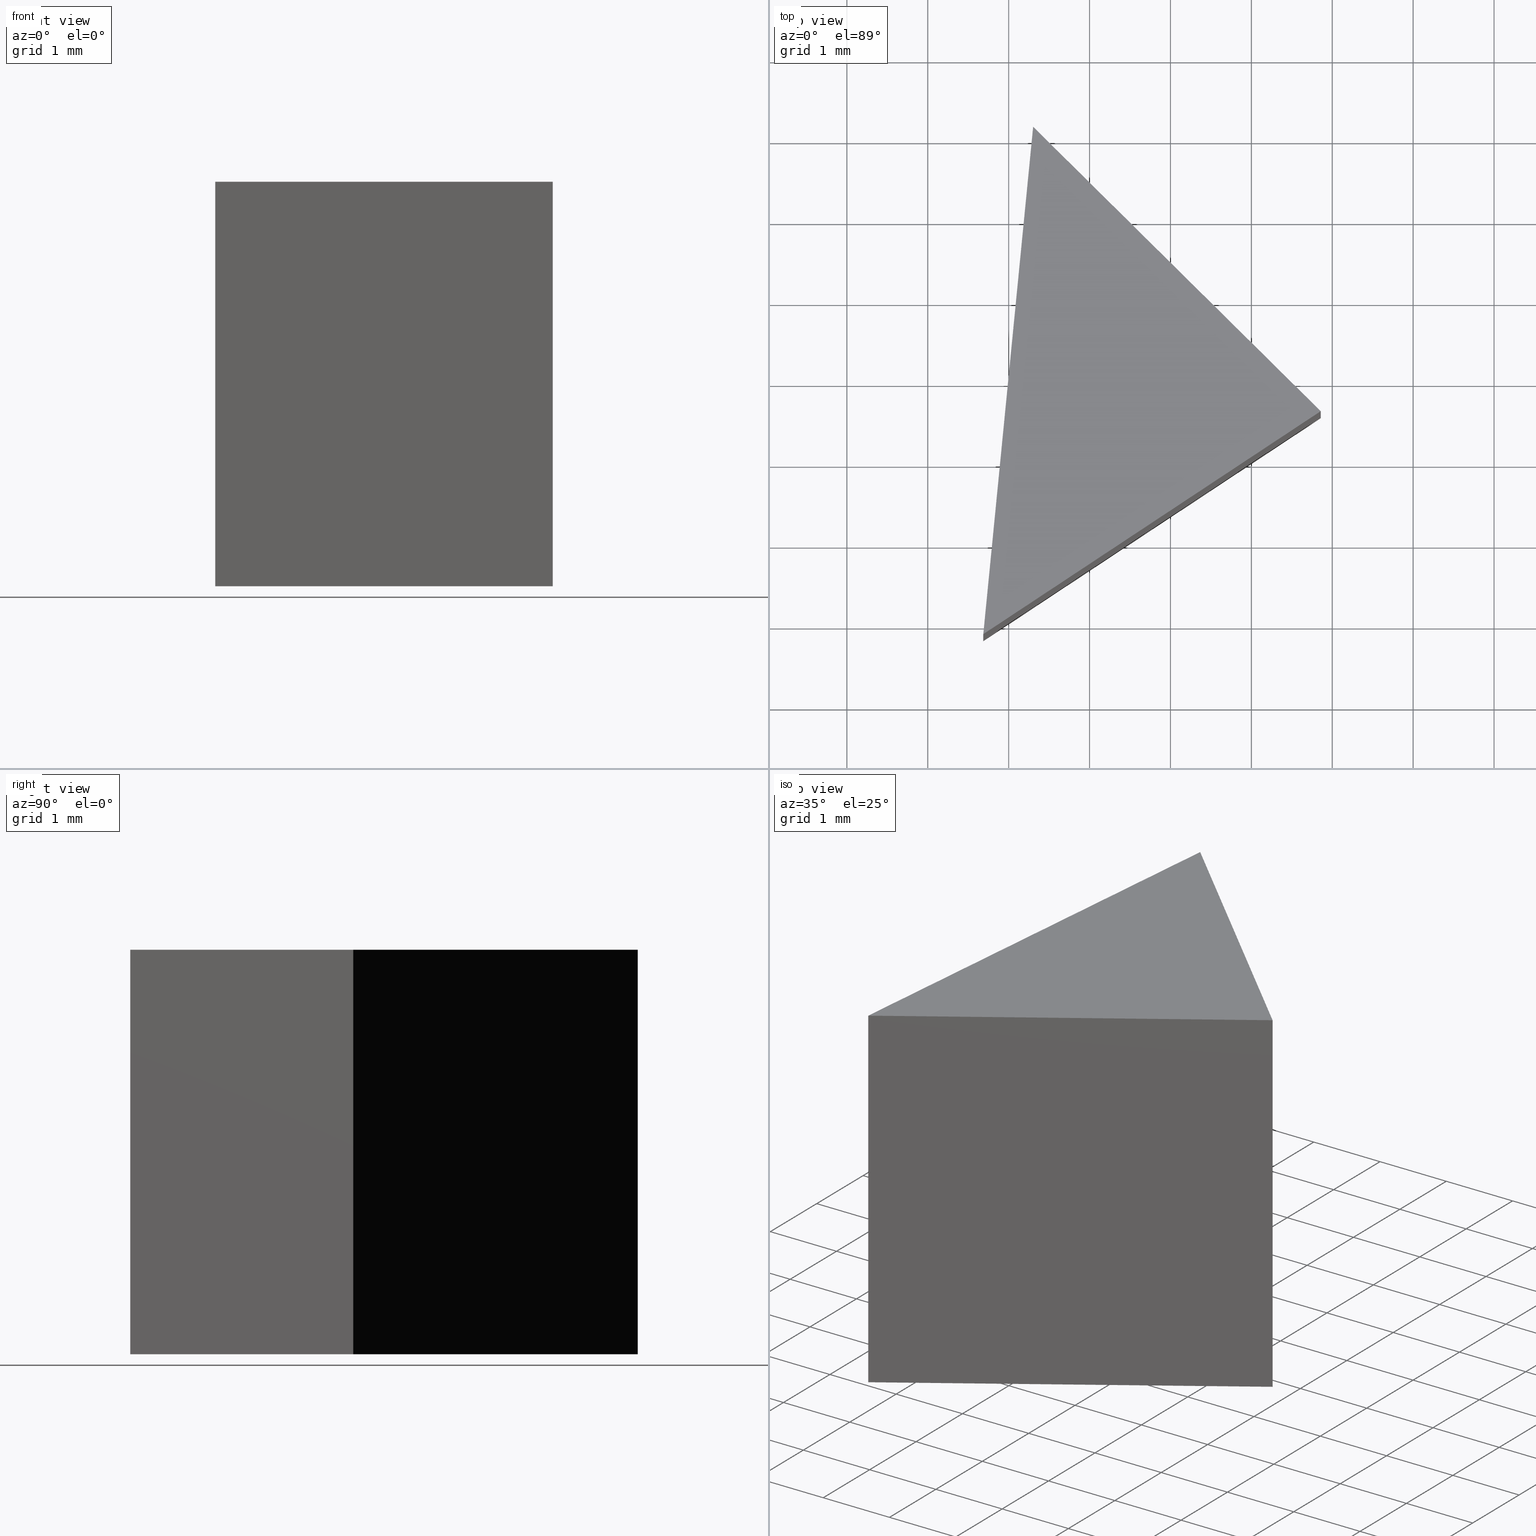
[diagram: canonical four-view strip — front | top / right | iso, engineering-drawing reading convention]
A machine part, canonical four-view strip (front | top / right | iso — engineering-drawing reading convention). The complete STEP part file that produces these views, byte-faithful:
ISO-10303-21;
HEADER;
FILE_DESCRIPTION (( 'STEP AP214' ),
    '1' );
FILE_NAME ('469000.STEP',
    '2019-08-23T02:00:11',
    ( 'user' ),
    ( '΢���й�' ),
    'SwSTEP 2.0',
    'SolidWorks 2016',
    '' );
FILE_SCHEMA (( 'AUTOMOTIVE_DESIGN' ));
ENDSEC;

DATA;
#1 = COLOUR_RGB ( '',1.000000000000000000, 1.000000000000000000, 1.000000000000000000 ) ;
#2 = VECTOR ( 'NONE', #42, 1000.000000000000000 ) ;
#3 = SURFACE_SIDE_STYLE ('',( #137 ) ) ;
#4 = CARTESIAN_POINT ( 'NONE',  ( 0.6861709744360347000, 0.8474711050240408800, 5.000000000000000000 ) ) ;
#5 = ORIENTED_EDGE ( 'NONE', *, *, #168, .F. ) ;
#6 = SURFACE_STYLE_USAGE ( .BOTH. , #3 ) ;
#7 =( LENGTH_UNIT ( ) NAMED_UNIT ( * ) SI_UNIT ( .MILLI., .METRE. ) );
#8 = AXIS2_PLACEMENT_3D ( 'NONE', #136, #60, #151 ) ;
#9 = ORIENTED_EDGE ( 'NONE', *, *, #106, .T. ) ;
#10 = SURFACE_STYLE_USAGE ( .BOTH. , #92 ) ;
#11 = EDGE_LOOP ( 'NONE', ( #15, #122, #83 ) ) ;
#12 = PRESENTATION_STYLE_ASSIGNMENT (( #10 ) ) ;
#13 =( GEOMETRIC_REPRESENTATION_CONTEXT ( 3 ) GLOBAL_UNCERTAINTY_ASSIGNED_CONTEXT ( ( #155 ) ) GLOBAL_UNIT_ASSIGNED_CONTEXT ( ( #7, #133, #91 ) ) REPRESENTATION_CONTEXT ( 'NONE', 'WORKASPACE' ) );
#14 = EDGE_LOOP ( 'NONE', ( #9, #5, #49, #21 ) ) ;
#15 = ORIENTED_EDGE ( 'NONE', *, *, #162, .T. ) ;
#16 = DIRECTION ( 'NONE',  ( 1.000000000000000000, 0.0000000000000000000, 0.0000000000000000000 ) ) ;
#17 = DIRECTION ( 'NONE',  ( -0.7109728236074620600, 0.7032194850056648900, 0.0000000000000000000 ) ) ;
#18 = VECTOR ( 'NONE', #82, 1000.000000000000000 ) ;
#19 = ADVANCED_FACE ( 'NONE', ( #45 ), #55, .F. ) ;
#20 = CARTESIAN_POINT ( 'NONE',  ( 0.6861709744360347000, 0.8474711050240408800, 5.000000000000000000 ) ) ;
#21 = ORIENTED_EDGE ( 'NONE', *, *, #95, .T. ) ;
#22 =( NAMED_UNIT ( * ) PLANE_ANGLE_UNIT ( ) SI_UNIT ( $, .RADIAN. ) );
#23 = DIRECTION ( 'NONE',  ( -0.09777970958415417600, -0.9952080829623715100, -0.0000000000000000000 ) ) ;
#24 = UNCERTAINTY_MEASURE_WITH_UNIT (LENGTH_MEASURE( 1.000000000000000100E-005 ), #113, 'distance_accuracy_value', 'NONE');
#25 =( GEOMETRIC_REPRESENTATION_CONTEXT ( 3 ) GLOBAL_UNCERTAINTY_ASSIGNED_CONTEXT ( ( #121 ) ) GLOBAL_UNIT_ASSIGNED_CONTEXT ( ( #103, #22, #117 ) ) REPRESENTATION_CONTEXT ( 'NONE', 'WORKASPACE' ) );
#26 = CARTESIAN_POINT ( 'NONE',  ( 0.6861709744360347000, 0.8474711050240408800, 5.000000000000000000 ) ) ;
#27 = PRODUCT_CONTEXT ( 'NONE', #159, 'mechanical' ) ;
#28 = VECTOR ( 'NONE', #61, 1000.000000000000000 ) ;
#29 = CARTESIAN_POINT ( 'NONE',  ( 1.302506795028856200, 7.120576160069372700, 5.000000000000000000 ) ) ;
#30 =( NAMED_UNIT ( * ) PLANE_ANGLE_UNIT ( ) SI_UNIT ( $, .RADIAN. ) );
#31 = DIRECTION ( 'NONE',  ( 0.09777970958415417600, 0.9952080829623715100, 0.0000000000000000000 ) ) ;
#32 = PRESENTATION_STYLE_ASSIGNMENT (( #6 ) ) ;
#33 = FACE_OUTER_BOUND ( 'NONE', #11, .T. ) ;
#34 = LINE ( 'NONE', #134, #72 ) ;
#35 = CARTESIAN_POINT ( 'NONE',  ( 4.857370913066168000, 3.604478735041047000, 0.0000000000000000000 ) ) ;
#36 =( GEOMETRIC_REPRESENTATION_CONTEXT ( 3 ) GLOBAL_UNCERTAINTY_ASSIGNED_CONTEXT ( ( #24 ) ) GLOBAL_UNIT_ASSIGNED_CONTEXT ( ( #113, #30, #130 ) ) REPRESENTATION_CONTEXT ( 'NONE', 'WORKASPACE' ) );
#37 = DIRECTION ( 'NONE',  ( -0.5514015260034012000, 0.8342399877260262600, 0.0000000000000000000 ) ) ;
#38 = CARTESIAN_POINT ( 'NONE',  ( 4.857370913066168000, 3.604478735041047000, 5.000000000000000000 ) ) ;
#39 = PRODUCT_DEFINITION_FORMATION_WITH_SPECIFIED_SOURCE ( '�κ�', '', #148, .NOT_KNOWN. ) ;
#40 = ORIENTED_EDGE ( 'NONE', *, *, #52, .T. ) ;
#41 = STYLED_ITEM ( 'NONE', ( #32 ), #79 ) ;
#42 = DIRECTION ( 'NONE',  ( -0.0000000000000000000, -0.0000000000000000000, -1.000000000000000000 ) ) ;
#43 = APPLICATION_PROTOCOL_DEFINITION ( 'draft international standard', 'automotive_design', 1998, #125 ) ;
#44 = CARTESIAN_POINT ( 'NONE',  ( 4.857370913066168000, 3.604478735041047000, 5.000000000000000000 ) ) ;
#45 = FACE_OUTER_BOUND ( 'NONE', #14, .T. ) ;
#46 = ORIENTED_EDGE ( 'NONE', *, *, #168, .T. ) ;
#47 = DIRECTION ( 'NONE',  ( -1.000000000000000000, 0.0000000000000000000, 0.0000000000000000000 ) ) ;
#48 = MECHANICAL_DESIGN_GEOMETRIC_PRESENTATION_REPRESENTATION (  '', ( #41 ), #13 ) ;
#49 = ORIENTED_EDGE ( 'NONE', *, *, #146, .F. ) ;
#50 = CLOSED_SHELL ( 'NONE', ( #74, #19, #139, #129, #85 ) ) ;
#51 = ORIENTED_EDGE ( 'NONE', *, *, #52, .F. ) ;
#52 = EDGE_CURVE ( 'NONE', #80, #164, #34, .T. ) ;
#53 = CARTESIAN_POINT ( 'NONE',  ( 0.0000000000000000000, 0.0000000000000000000, 0.0000000000000000000 ) ) ;
#54 = LINE ( 'NONE', #166, #98 ) ;
#55 = PLANE ( 'NONE',  #81 ) ;
#56 = SHAPE_DEFINITION_REPRESENTATION ( #126, #141 ) ;
#57 = VERTEX_POINT ( 'NONE', #88 ) ;
#58 = DIRECTION ( 'NONE',  ( -0.0000000000000000000, -0.0000000000000000000, -1.000000000000000000 ) ) ;
#59 = PRESENTATION_LAYER_ASSIGNMENT (  '', '', ( #41 ) ) ;
#60 = DIRECTION ( 'NONE',  ( 0.0000000000000000000, 0.0000000000000000000, -1.000000000000000000 ) ) ;
#61 = DIRECTION ( 'NONE',  ( 0.8342399877260263700, 0.5514015260034012000, -0.0000000000000000000 ) ) ;
#62 = FILL_AREA_STYLE_COLOUR ( '', #102 ) ;
#63 = SURFACE_STYLE_FILL_AREA ( #169 ) ;
#64 = CARTESIAN_POINT ( 'NONE',  ( 4.857370913066168000, 3.604478735041047000, 5.000000000000000000 ) ) ;
#65 = FACE_OUTER_BOUND ( 'NONE', #75, .T. ) ;
#66 = FACE_OUTER_BOUND ( 'NONE', #90, .T. ) ;
#67 = PRODUCT_RELATED_PRODUCT_CATEGORY ( 'part', '', ( #148 ) ) ;
#68 = CARTESIAN_POINT ( 'NONE',  ( 4.857370913066168000, 3.604478735041047000, 5.000000000000000000 ) ) ;
#69 = DIRECTION ( 'NONE',  ( -0.7032194850056650000, -0.7109728236074621700, 0.0000000000000000000 ) ) ;
#70 = FACE_OUTER_BOUND ( 'NONE', #108, .T. ) ;
#71 = VECTOR ( 'NONE', #17, 1000.000000000000100 ) ;
#72 = VECTOR ( 'NONE', #58, 1000.000000000000000 ) ;
#73 = CARTESIAN_POINT ( 'NONE',  ( 4.857370913066168000, 3.604478735041047000, 5.000000000000000000 ) ) ;
#74 = ADVANCED_FACE ( 'NONE', ( #66 ), #142, .F. ) ;
#75 = EDGE_LOOP ( 'NONE', ( #118, #51, #161, #46 ) ) ;
#76 = PRODUCT_DEFINITION ( 'δ֪', '', #39, #147 ) ;
#77 = ORIENTED_EDGE ( 'NONE', *, *, #95, .F. ) ;
#78 = FILL_AREA_STYLE_COLOUR ( '', #1 ) ;
#79 = MANIFOLD_SOLID_BREP ( '͹̨-����1', #50 ) ;
#80 = VERTEX_POINT ( 'NONE', #26 ) ;
#81 = AXIS2_PLACEMENT_3D ( 'NONE', #38, #69, #163 ) ;
#82 = DIRECTION ( 'NONE',  ( 0.8342399877260263700, 0.5514015260034012000, -0.0000000000000000000 ) ) ;
#83 = ORIENTED_EDGE ( 'NONE', *, *, #143, .T. ) ;
#84 = LINE ( 'NONE', #64, #18 ) ;
#85 = ADVANCED_FACE ( 'NONE', ( #70 ), #110, .T. ) ;
#86 = ORIENTED_EDGE ( 'NONE', *, *, #123, .F. ) ;
#87 = MECHANICAL_DESIGN_GEOMETRIC_PRESENTATION_REPRESENTATION (  '', ( #94 ), #25 ) ;
#88 = CARTESIAN_POINT ( 'NONE',  ( 1.302506795028856200, 7.120576160069372700, 0.0000000000000000000 ) ) ;
#89 = VECTOR ( 'NONE', #23, 1000.000000000000000 ) ;
#90 = EDGE_LOOP ( 'NONE', ( #116, #77, #154, #40 ) ) ;
#91 =( NAMED_UNIT ( * ) SI_UNIT ( $, .STERADIAN. ) SOLID_ANGLE_UNIT ( ) );
#92 = SURFACE_SIDE_STYLE ('',( #63 ) ) ;
#93 = DIRECTION ( 'NONE',  ( -0.8342399877260262600, -0.5514015260034012000, 0.0000000000000000000 ) ) ;
#94 = STYLED_ITEM ( 'NONE', ( #12 ), #141 ) ;
#95 = EDGE_CURVE ( 'NONE', #156, #149, #145, .T. ) ;
#96 = DIRECTION ( 'NONE',  ( 0.0000000000000000000, 0.0000000000000000000, 1.000000000000000000 ) ) ;
#97 = CARTESIAN_POINT ( 'NONE',  ( 0.6861709744360347000, 0.8474711050240408800, 0.0000000000000000000 ) ) ;
#98 = VECTOR ( 'NONE', #99, 1000.000000000000000 ) ;
#99 = DIRECTION ( 'NONE',  ( -0.0000000000000000000, -0.0000000000000000000, -1.000000000000000000 ) ) ;
#100 = PLANE ( 'NONE',  #167 ) ;
#101 = VECTOR ( 'NONE', #138, 1000.000000000000000 ) ;
#102 = COLOUR_RGB ( '',1.000000000000000000, 1.000000000000000000, 1.000000000000000000 ) ;
#103 =( LENGTH_UNIT ( ) NAMED_UNIT ( * ) SI_UNIT ( .MILLI., .METRE. ) );
#104 = AXIS2_PLACEMENT_3D ( 'NONE', #68, #37, #93 ) ;
#105 = CARTESIAN_POINT ( 'NONE',  ( 0.6861709744360347000, 0.8474711050240408800, 0.0000000000000000000 ) ) ;
#106 = EDGE_CURVE ( 'NONE', #149, #57, #107, .T. ) ;
#107 = LINE ( 'NONE', #165, #71 ) ;
#108 = EDGE_LOOP ( 'NONE', ( #144, #86, #158 ) ) ;
#109 = LINE ( 'NONE', #112, #28 ) ;
#110 = PLANE ( 'NONE',  #8 ) ;
#111 = APPLICATION_PROTOCOL_DEFINITION ( 'draft international standard', 'automotive_design', 1998, #159 ) ;
#112 = CARTESIAN_POINT ( 'NONE',  ( 4.857370913066168000, 3.604478735041047000, 0.0000000000000000000 ) ) ;
#113 =( LENGTH_UNIT ( ) NAMED_UNIT ( * ) SI_UNIT ( .MILLI., .METRE. ) );
#114 = DIRECTION ( 'NONE',  ( 0.9952080829623715100, -0.09777970958415417600, 0.0000000000000000000 ) ) ;
#115 = AXIS2_PLACEMENT_3D ( 'NONE', #128, #124, #47 ) ;
#116 = ORIENTED_EDGE ( 'NONE', *, *, #140, .T. ) ;
#117 =( NAMED_UNIT ( * ) SI_UNIT ( $, .STERADIAN. ) SOLID_ANGLE_UNIT ( ) );
#118 = ORIENTED_EDGE ( 'NONE', *, *, #123, .T. ) ;
#119 = VECTOR ( 'NONE', #131, 1000.000000000000100 ) ;
#120 = VERTEX_POINT ( 'NONE', #29 ) ;
#121 = UNCERTAINTY_MEASURE_WITH_UNIT (LENGTH_MEASURE( 1.000000000000000100E-005 ), #103, 'distance_accuracy_value', 'NONE');
#122 = ORIENTED_EDGE ( 'NONE', *, *, #146, .T. ) ;
#123 = EDGE_CURVE ( 'NONE', #57, #164, #135, .T. ) ;
#124 = DIRECTION ( 'NONE',  ( 0.0000000000000000000, 0.0000000000000000000, -1.000000000000000000 ) ) ;
#125 = APPLICATION_CONTEXT ( 'automotive_design' ) ;
#126 = PRODUCT_DEFINITION_SHAPE ( 'NONE', 'NONE',  #76 ) ;
#127 = LINE ( 'NONE', #4, #89 ) ;
#128 = CARTESIAN_POINT ( 'NONE',  ( 0.0000000000000000000, 0.0000000000000000000, 5.000000000000000000 ) ) ;
#129 = ADVANCED_FACE ( 'NONE', ( #33 ), #152, .F. ) ;
#130 =( NAMED_UNIT ( * ) SI_UNIT ( $, .STERADIAN. ) SOLID_ANGLE_UNIT ( ) );
#131 = DIRECTION ( 'NONE',  ( -0.7109728236074620600, 0.7032194850056648900, 0.0000000000000000000 ) ) ;
#132 = CARTESIAN_POINT ( 'NONE',  ( 4.857370913066168000, 3.604478735041047000, 5.000000000000000000 ) ) ;
#133 =( NAMED_UNIT ( * ) PLANE_ANGLE_UNIT ( ) SI_UNIT ( $, .RADIAN. ) );
#134 = CARTESIAN_POINT ( 'NONE',  ( 0.6861709744360347000, 0.8474711050240408800, 5.000000000000000000 ) ) ;
#135 = LINE ( 'NONE', #97, #101 ) ;
#136 = CARTESIAN_POINT ( 'NONE',  ( 0.0000000000000000000, 0.0000000000000000000, 0.0000000000000000000 ) ) ;
#137 = SURFACE_STYLE_FILL_AREA ( #153 ) ;
#138 = DIRECTION ( 'NONE',  ( -0.09777970958415417600, -0.9952080829623715100, -0.0000000000000000000 ) ) ;
#139 = ADVANCED_FACE ( 'NONE', ( #65 ), #100, .F. ) ;
#140 = EDGE_CURVE ( 'NONE', #164, #149, #109, .T. ) ;
#141 = ADVANCED_BREP_SHAPE_REPRESENTATION ( '469000', ( #79, #160 ), #36 ) ;
#142 = PLANE ( 'NONE',  #104 ) ;
#143 = EDGE_CURVE ( 'NONE', #120, #80, #127, .T. ) ;
#144 = ORIENTED_EDGE ( 'NONE', *, *, #140, .F. ) ;
#145 = LINE ( 'NONE', #73, #2 ) ;
#146 = EDGE_CURVE ( 'NONE', #156, #120, #157, .T. ) ;
#147 = PRODUCT_DEFINITION_CONTEXT ( 'detailed design', #125, 'design' ) ;
#148 = PRODUCT ( '469000', '469000', '', ( #27 ) ) ;
#149 = VERTEX_POINT ( 'NONE', #35 ) ;
#150 = PRESENTATION_LAYER_ASSIGNMENT (  '', '', ( #94 ) ) ;
#151 = DIRECTION ( 'NONE',  ( -1.000000000000000000, 0.0000000000000000000, 0.0000000000000000000 ) ) ;
#152 = PLANE ( 'NONE',  #115 ) ;
#153 = FILL_AREA_STYLE ('',( #62 ) ) ;
#154 = ORIENTED_EDGE ( 'NONE', *, *, #162, .F. ) ;
#155 = UNCERTAINTY_MEASURE_WITH_UNIT (LENGTH_MEASURE( 1.000000000000000100E-005 ), #7, 'distance_accuracy_value', 'NONE');
#156 = VERTEX_POINT ( 'NONE', #132 ) ;
#157 = LINE ( 'NONE', #44, #119 ) ;
#158 = ORIENTED_EDGE ( 'NONE', *, *, #106, .F. ) ;
#159 = APPLICATION_CONTEXT ( 'automotive_design' ) ;
#160 = AXIS2_PLACEMENT_3D ( 'NONE', #53, #96, #16 ) ;
#161 = ORIENTED_EDGE ( 'NONE', *, *, #143, .F. ) ;
#162 = EDGE_CURVE ( 'NONE', #80, #156, #84, .T. ) ;
#163 = DIRECTION ( 'NONE',  ( 0.7109728236074620600, -0.7032194850056648900, 0.0000000000000000000 ) ) ;
#164 = VERTEX_POINT ( 'NONE', #105 ) ;
#165 = CARTESIAN_POINT ( 'NONE',  ( 4.857370913066168000, 3.604478735041047000, 0.0000000000000000000 ) ) ;
#166 = CARTESIAN_POINT ( 'NONE',  ( 1.302506795028856200, 7.120576160069372700, 5.000000000000000000 ) ) ;
#167 = AXIS2_PLACEMENT_3D ( 'NONE', #20, #114, #31 ) ;
#168 = EDGE_CURVE ( 'NONE', #120, #57, #54, .T. ) ;
#169 = FILL_AREA_STYLE ('',( #78 ) ) ;
ENDSEC;
END-ISO-10303-21;
